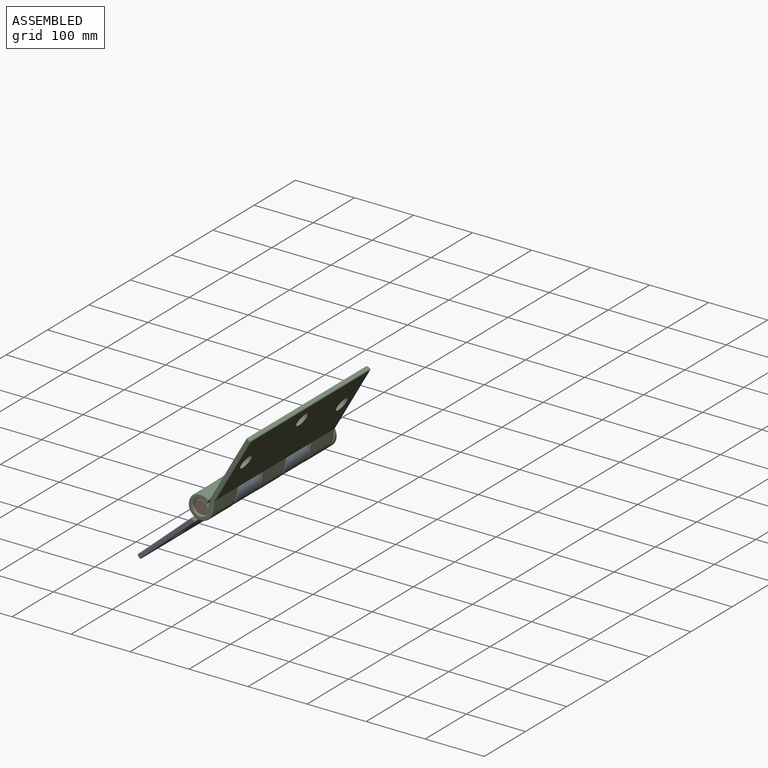
[diagram: assembled view]
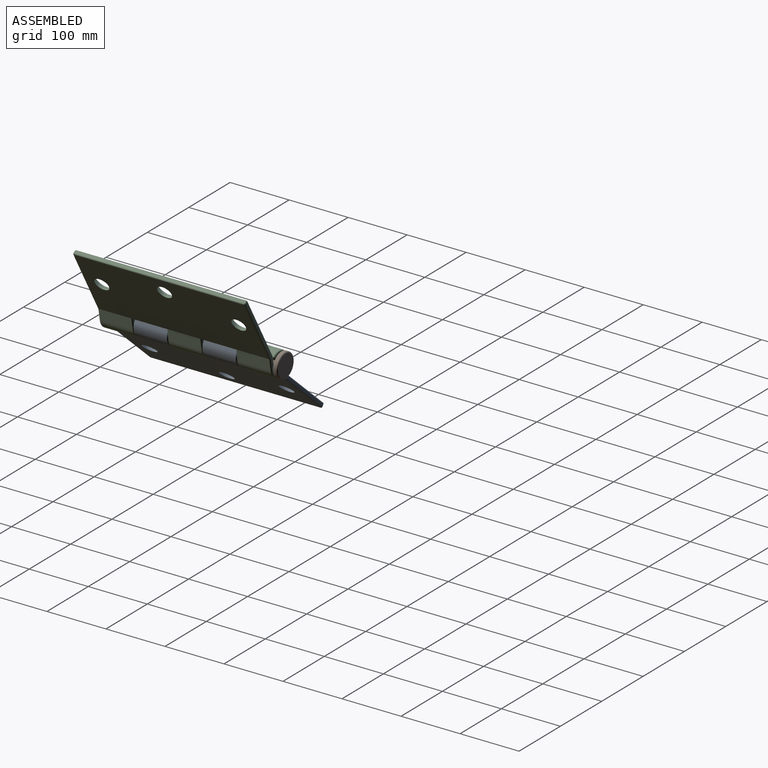
[diagram: assembled view, second angle]
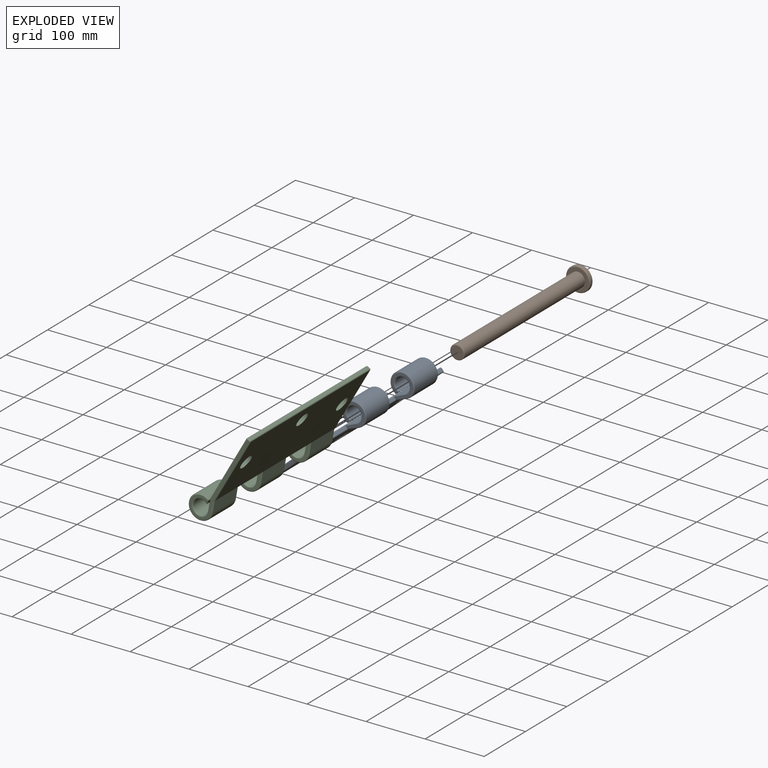
[diagram: exploded view]
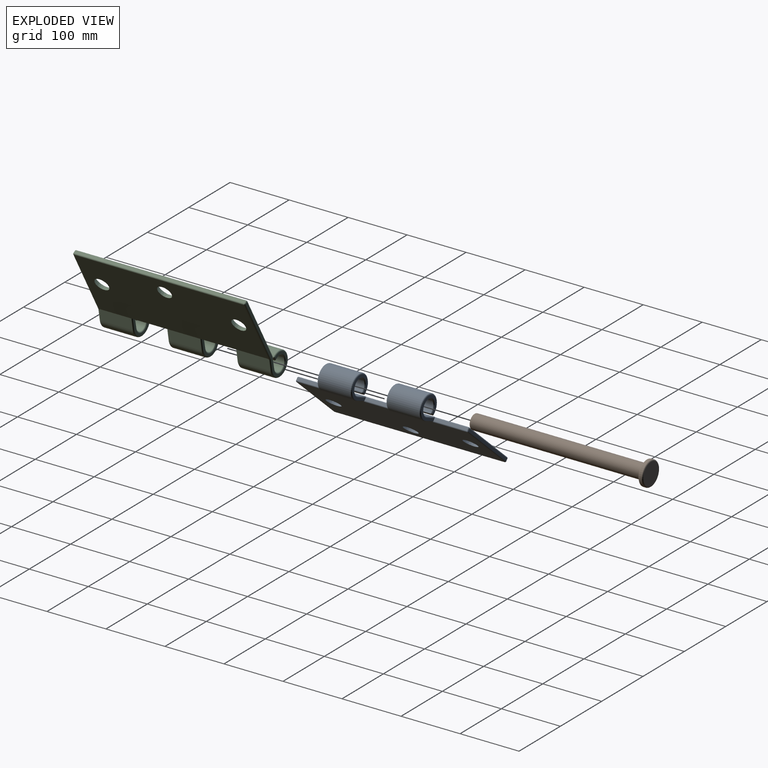
[diagram: exploded view, second angle]
ASSEMBLY  parts=3 mates=2
PART A: 72 faces, bbox 171.7x292x44.4 mm
  f0: cylinder r=12.5mm len=54.4mm, axis (0,1,0), area 3703.3mm2, adj f2,f8,f66,f71
  f1: cylinder r=12.5mm len=54.4mm, axis (0,1,0), area 3565.2mm2, adj f3,f40,f51,f52
  f2: plane 54.4x20.54mm, normal (0.32,0,0.95), area 1178.1mm2, adj f0,f12,f64,f69
  f3: plane 54.4x20.54mm, normal (0.32,0,0.95), area 1178.1mm2, adj f1,f12,f39,f50
  f4: plane 54.4x18.49mm, normal (-0.34,0,-0.94), area 1068.7mm2, adj f6,f45,f62,f67
  f5: plane 54.4x18.49mm, normal (-0.34,0,-0.94), area 1068.7mm2, adj f7,f41,f45,f55
  f6: cylinder r=20.5mm len=54.4mm, axis (0,1,0), area 5913.6mm2, adj f4,f8,f63,f68
  f7: cylinder r=20.5mm len=54.4mm, axis (0,1,0), area 5820.5mm2, adj f5,f42,f58,f61
  f8: plane 54.4x8.42mm, normal (0,0,-1), area 458.3mm2, adj f0,f6,f65,f70
  f9: plane 54.4x4.07mm, normal (0,0,-1), area 221.3mm2, adj f51,f56,f57,f61
  f10: plane 121x4mm, normal (0,-1,0), area 484mm2, adj f32,f36,f37,f38
  f11: plane 121x4mm, normal (0,1,0), area 484mm2, adj f25,f26,f27,f28
  f12: plane 288x123mm, normal (0,0,1), area 32660.9mm2, adj f2,f3,f15,f16,f17,f28,f33,f37
  f13: plane 288x4mm, normal (-1,0,0), area 1152mm2, adj f27,f31,f32,f33
  f14: plane 288x121mm, normal (0,0,-1), area 33490.8mm2, adj f15,f16,f17,f26,f31,f36,f45
  f15: cone r=12mm half-angle=26.6deg, axis (0,0,1), area 786.8mm2, adj f12,f14
  f16: cone r=12mm half-angle=26.6deg, axis (0,0,1), area 786.8mm2, adj f12,f14
  f17: cone r=12mm half-angle=26.6deg, axis (0,0,1), area 786.8mm2, adj f12,f14
  f18: plane 56.4x4mm, normal (1,0,0), area 225.6mm2, adj f19,f38,f39,f41,f45,f47
  f19: plane 43x37mm, normal (0,-1,0), area 421.5mm2, adj f18,f39,f40,f41,f42,f56
  f20: plane 58.41x4mm, normal (1,0,0), area 233.6mm2, adj f21,f22,f45,f49,f50,f55,f67,f69
  f21: plane 43x37mm, normal (0,-1,0), area 421.5mm2, adj f20,f67,f68,f69,f70,f71
  f22: plane 43x37mm, normal (0,1,0), area 421.5mm2, adj f20,f50,f52,f55,f57,f58
  f23: plane 56.4x4mm, normal (1,0,0), area 225.6mm2, adj f24,f25,f43,f45,f62,f64
  f24: plane 43x37mm, normal (0,1,0), area 421.5mm2, adj f23,f62,f63,f64,f65,f66
  f25: cylinder r=2mm len=5.41mm, axis (0,0,-1), area 14.9mm2, adj f11,f23,f26,f44,f45
  f26: cylinder r=2mm len=122.41mm, axis (1,0,0), area 382.5mm2, adj f11,f14,f25,f29,f45
  f27: cylinder r=2mm len=4mm, axis (0,0,-1), area 12.6mm2, adj f11,f13,f29,f30
  f28: cylinder r=2mm len=121mm, axis (-1,0,0), area 380.1mm2, adj f11,f12,f30,f44
  f29: sphere r=2mm, area 6.3mm2, adj f26,f27,f31
  f30: sphere r=2mm, area 6.3mm2, adj f27,f28,f33
  f31: cylinder r=2mm len=288mm, axis (0,1,0), area 904.8mm2, adj f13,f14,f29,f34
  f32: cylinder r=2mm len=4mm, axis (0,0,1), area 12.6mm2, adj f10,f13,f34,f35
  f33: cylinder r=2mm len=288mm, axis (0,1,0), area 904.8mm2, adj f12,f13,f30,f35
  f34: sphere r=2mm, area 6.3mm2, adj f31,f32,f36
  f35: sphere r=2mm, area 6.3mm2, adj f32,f33,f37
  f36: cylinder r=2mm len=121mm, axis (-1,0,0), area 380.1mm2, adj f10,f14,f34,f46
  f37: cylinder r=2mm len=121mm, axis (1,0,0), area 380.1mm2, adj f10,f12,f35,f48
  f38: cylinder r=2mm len=4mm, axis (0,0,1), area 12.6mm2, adj f10,f18,f46,f48
  f39: cylinder r=2mm len=22.98mm, axis (0.95,0,-0.32), area 68.7mm2, adj f3,f12,f18,f19,f40,f47
  f40: torus R=14.5mm, axis (0,-1,0), area 217.9mm2, adj f1,f19,f39,f53
  f41: cylinder r=2mm len=19.17mm, axis (-0.94,0,0.34), area 61mm2, adj f5,f18,f19,f42,f45
  f42: torus R=18.5mm, axis (0,-1,0), area 324.2mm2, adj f7,f19,f41,f59
  f43: cylinder r=2mm len=57.04mm, axis (0,1,0), area 178.4mm2, adj f12,f23,f44,f64
  f44: sphere r=2mm, area 6.3mm2, adj f25,f28,f43
  f45: cylinder r=2mm len=289.41mm, axis (0,-1,0), area 679mm2, adj f4,f5,f14,f18,f20,f23,f25,f26
  f46: sphere r=2mm, area 6.3mm2, adj f36,f38,f45
  f47: cylinder r=2mm len=57.04mm, axis (0,-1,0), area 178.4mm2, adj f12,f18,f39,f48
  f48: sphere r=2mm, area 6.3mm2, adj f37,f38,f47
  f49: cylinder r=2mm len=59.69mm, axis (0,1,0), area 185.9mm2, adj f12,f20,f50,f69
  f50: cylinder r=2mm len=22.98mm, axis (-0.95,0,0.32), area 68.7mm2, adj f3,f12,f20,f22,f49,f52
  f51: cylinder r=2mm len=54.4mm, axis (0,1,0), area 193.6mm2, adj f1,f9,f53,f54
  f52: torus R=14.5mm, axis (0,-1,0), area 217.9mm2, adj f1,f22,f50,f54
  f53: sphere r=2mm, area 7.1mm2, adj f40,f51,f56
  f54: sphere r=2mm, area 7.1mm2, adj f51,f52,f57
  f55: cylinder r=2mm len=19.17mm, axis (0.94,0,-0.34), area 61mm2, adj f5,f20,f22,f45,f58
  f56: cylinder r=2mm len=4.07mm, axis (-1,0,0), area 12.8mm2, adj f9,f19,f53,f59
  f57: cylinder r=2mm len=4.07mm, axis (1,0,0), area 12.8mm2, adj f9,f22,f54,f60
  f58: torus R=18.5mm, axis (0,-1,0), area 324.2mm2, adj f7,f22,f55,f60
  f59: sphere r=2mm, area 5.6mm2, adj f42,f56,f61
  f60: sphere r=2mm, area 5.6mm2, adj f57,f58,f61
  f61: cylinder r=2mm len=54.4mm, axis (0,1,0), area 153.2mm2, adj f7,f9,f59,f60
  f62: cylinder r=2mm len=19.17mm, axis (0.94,0,-0.34), area 61mm2, adj f4,f23,f24,f45,f63
  f63: torus R=18.5mm, axis (0,-1,0), area 327.6mm2, adj f6,f24,f62,f65
  f64: cylinder r=2mm len=22.98mm, axis (-0.95,0,0.32), area 68.7mm2, adj f2,f12,f23,f24,f43,f66
  f65: cylinder r=2mm len=8.42mm, axis (1,0,0), area 21.4mm2, adj f8,f24,f63,f66
  f66: torus R=14.5mm, axis (0,-1,0), area 222.9mm2, adj f0,f24,f64,f65
  f67: cylinder r=2mm len=19.17mm, axis (-0.94,0,0.34), area 61mm2, adj f4,f20,f21,f45,f68
  f68: torus R=18.5mm, axis (0,-1,0), area 327.6mm2, adj f6,f21,f67,f70
  f69: cylinder r=2mm len=22.98mm, axis (0.95,0,-0.32), area 68.7mm2, adj f2,f12,f20,f21,f49,f71
  f70: cylinder r=2mm len=8.42mm, axis (-1,0,0), area 21.4mm2, adj f8,f21,f68,f71
  f71: torus R=14.5mm, axis (0,-1,0), area 222.9mm2, adj f0,f21,f69,f70
PART B: 8 faces, bbox 44.4x300x44.4 mm
  f0: cylinder r=12.25mm len=290mm, axis (0,1,0), area 22321mm2, adj f4,f7
  f1: plane 20.5x20.5mm, normal (0,-1,0), area 330.1mm2, adj f7
  f2: cylinder r=20.5mm len=41mm, axis (0,-1,0), area 515.2mm2, adj f5,f6
  f3: plane 37x37mm, normal (0,1,0), area 1075.2mm2, adj f6
  f4: plane 37x37mm, normal (0,-1,0), area 603.8mm2, adj f0,f5
  f5: torus R=18.5mm, axis (0,1,0), area 390.3mm2, adj f2,f4
  f6: torus R=18.5mm, axis (0,1,0), area 390.3mm2, adj f2,f3
  f7: torus R=10.25mm, axis (0,1,0), area 227.5mm2, adj f0,f1
PART C: 86 faces, bbox 171.7x292x44.4 mm
  f0: cylinder r=12.5mm len=54.4mm, axis (0,1,0), area 3565.2mm2, adj f2,f54,f62,f64
  f1: cylinder r=12.5mm len=54.4mm, axis (0,1,0), area 3703.3mm2, adj f3,f9,f41,f85
  f2: plane 54.4x20.54mm, normal (-0.32,0,0.95), area 1178.1mm2, adj f0,f12,f53,f61
  f3: plane 54.4x20.54mm, normal (-0.32,0,0.95), area 1178.1mm2, adj f1,f12,f36,f83
  f4: plane 54.4x18.49mm, normal (0.34,0,-0.94), area 1068.7mm2, adj f6,f55,f63,f66
  f5: plane 54.4x18.49mm, normal (0.34,0,-0.94), area 1068mm2, adj f7,f49,f50,f63,f81
  f6: cylinder r=20.5mm len=54.4mm, axis (0,1,0), area 5820.5mm2, adj f4,f56,f69,f73
  f7: cylinder r=20.5mm len=54.4mm, axis (0,1,0), area 5913.6mm2, adj f5,f9,f47,f82
  f8: plane 54.4x4.07mm, normal (0,0,-1), area 221.3mm2, adj f64,f68,f70,f73
  f9: plane 54.4x8.42mm, normal (0,0,-1), area 458.3mm2, adj f1,f7,f44,f84
  f10: cylinder r=12.5mm len=54.4mm, axis (0,1,0), area 3565.2mm2, adj f11,f29,f58,f75
  f11: plane 54.4x20.54mm, normal (-0.32,0,0.95), area 1178.1mm2, adj f10,f12,f30,f57
  f12: plane 288x123mm, normal (0,0,1), area 32769.7mm2, adj f2,f3,f11,f20,f21,f22,f32,f37
  f13: plane 288x4mm, normal (1,0,0), area 1152mm2, adj f38,f39,f45,f46
  f14: plane 288x121mm, normal (0,0,-1), area 33490.8mm2, adj f20,f21,f22,f40,f46,f50,f63
  f15: plane 54.4x18.49mm, normal (0.34,0,-0.94), area 1068mm2, adj f16,f35,f40,f59,f63
  f16: cylinder r=20.5mm len=54.4mm, axis (0,1,0), area 5820.5mm2, adj f15,f33,f60,f79
  f17: plane 54.4x4.07mm, normal (0,0,-1), area 221.3mm2, adj f31,f75,f77,f79
  f18: plane 166x37mm, normal (0,-1,0), area 913.5mm2, adj f36,f37,f41,f44,f45,f47,f49,f50
  f19: plane 166x37mm, normal (0,1,0), area 913.5mm2, adj f29,f30,f31,f32,f33,f35,f39,f40
  f20: cone r=12mm half-angle=26.6deg, axis (0,0,1), area 786.8mm2, adj f12,f14
  f21: cone r=12mm half-angle=26.6deg, axis (0,0,1), area 786.8mm2, adj f12,f14
  f22: cone r=12mm half-angle=26.6deg, axis (0,0,1), area 786.8mm2, adj f12,f14
  f23: plane 58.41x4mm, normal (-1,0,0), area 233.6mm2, adj f24,f25,f52,f61,f63,f66,f81,f83
  f24: plane 43x37mm, normal (0,1,0), area 421.5mm2, adj f23,f81,f82,f83,f84,f85
  f25: plane 43x37mm, normal (0,-1,0), area 421.5mm2, adj f23,f61,f62,f66,f68,f69
  f26: plane 58.41x4mm, normal (-1,0,0), area 233.6mm2, adj f27,f28,f51,f53,f55,f57,f59,f63
  f27: plane 43x37mm, normal (0,1,0), area 421.5mm2, adj f26,f53,f54,f55,f56,f70
  f28: plane 43x37mm, normal (0,-1,0), area 421.5mm2, adj f26,f57,f58,f59,f60,f77
  f29: torus R=14.5mm, axis (0,-1,0), area 217.9mm2, adj f10,f19,f30,f74
  f30: cylinder r=2mm len=21.18mm, axis (0.95,0,0.32), area 67.7mm2, adj f11,f19,f29,f32
  f31: cylinder r=2mm len=4.07mm, axis (-1,0,0), area 12.8mm2, adj f17,f19,f74,f80
  f32: cylinder r=2mm len=123mm, axis (1,0,0), area 386mm2, adj f12,f19,f30,f34
  f33: torus R=18.5mm, axis (0,-1,0), area 324.2mm2, adj f16,f19,f35,f80
  f34: sphere r=2mm, area 6.3mm2, adj f32,f38,f39
  f35: cylinder r=2mm len=18.59mm, axis (-0.94,0,-0.34), area 59.1mm2, adj f15,f19,f33,f40
  f36: cylinder r=2mm len=21.18mm, axis (-0.95,0,-0.32), area 67.7mm2, adj f3,f18,f37,f41
  f37: cylinder r=2mm len=123mm, axis (-1,0,0), area 386mm2, adj f12,f18,f36,f42
  f38: cylinder r=2mm len=288mm, axis (0,1,0), area 904.8mm2, adj f12,f13,f34,f42
  f39: cylinder r=2mm len=4mm, axis (0,0,-1), area 12.6mm2, adj f13,f19,f34,f43
  f40: cylinder r=2mm len=123.35mm, axis (-1,0,0), area 388.1mm2, adj f14,f15,f19,f35,f43,f63
  f41: torus R=14.5mm, axis (0,-1,0), area 222.9mm2, adj f1,f18,f36,f44
  f42: sphere r=2mm, area 6.3mm2, adj f37,f38,f45
  f43: sphere r=2mm, area 6.3mm2, adj f39,f40,f46
  f44: cylinder r=2mm len=8.42mm, axis (1,0,0), area 21.4mm2, adj f9,f18,f41,f47
  f45: cylinder r=2mm len=4mm, axis (0,0,1), area 12.6mm2, adj f13,f18,f42,f48
  f46: cylinder r=2mm len=288mm, axis (0,1,0), area 904.8mm2, adj f13,f14,f43,f48
  f47: torus R=18.5mm, axis (0,-1,0), area 327.6mm2, adj f7,f18,f44,f49
  f48: sphere r=2mm, area 6.3mm2, adj f45,f46,f50
  f49: cylinder r=2mm len=18.59mm, axis (0.94,0,0.34), area 59.1mm2, adj f5,f18,f47,f50
  f50: cylinder r=2mm len=123.35mm, axis (1,0,0), area 388.1mm2, adj f5,f14,f18,f48,f49,f63
  f51: cylinder r=2mm len=59.69mm, axis (0,-1,0), area 185.9mm2, adj f12,f26,f53,f57
  f52: cylinder r=2mm len=59.69mm, axis (0,-1,0), area 185.9mm2, adj f12,f23,f61,f83
  f53: cylinder r=2mm len=22.98mm, axis (-0.95,0,-0.32), area 68.7mm2, adj f2,f12,f26,f27,f51,f54
  f54: torus R=14.5mm, axis (0,1,0), area 217.9mm2, adj f0,f27,f53,f67
  f55: cylinder r=2mm len=19.17mm, axis (0.94,0,0.34), area 61mm2, adj f4,f26,f27,f56,f63
  f56: torus R=18.5mm, axis (0,1,0), area 324.2mm2, adj f6,f27,f55,f72
  f57: cylinder r=2mm len=22.98mm, axis (0.95,0,0.32), area 68.7mm2, adj f11,f12,f26,f28,f51,f58
  f58: torus R=14.5mm, axis (0,1,0), area 217.9mm2, adj f10,f28,f57,f76
  f59: cylinder r=2mm len=19.17mm, axis (-0.94,0,-0.34), area 61mm2, adj f15,f26,f28,f60,f63
  f60: torus R=18.5mm, axis (0,1,0), area 324.2mm2, adj f16,f28,f59,f78
  f61: cylinder r=2mm len=22.98mm, axis (0.95,0,0.32), area 68.7mm2, adj f2,f12,f23,f25,f52,f62
  f62: torus R=14.5mm, axis (0,1,0), area 217.9mm2, adj f0,f25,f61,f65
  f63: cylinder r=2mm len=288mm, axis (0,1,0), area 567.4mm2, adj f4,f5,f14,f15,f23,f26,f40,f50
  f64: cylinder r=2mm len=54.4mm, axis (0,1,0), area 193.6mm2, adj f0,f8,f65,f67
  f65: sphere r=2mm, area 7.1mm2, adj f62,f64,f68
  f66: cylinder r=2mm len=19.17mm, axis (-0.94,0,-0.34), area 61mm2, adj f4,f23,f25,f63,f69
  f67: sphere r=2mm, area 7.1mm2, adj f54,f64,f70
  f68: cylinder r=2mm len=4.07mm, axis (-1,0,0), area 12.8mm2, adj f8,f25,f65,f71
  f69: torus R=18.5mm, axis (0,1,0), area 324.2mm2, adj f6,f25,f66,f71
  f70: cylinder r=2mm len=4.07mm, axis (1,0,0), area 12.8mm2, adj f8,f27,f67,f72
  f71: sphere r=2mm, area 5.6mm2, adj f68,f69,f73
  f72: sphere r=2mm, area 5.6mm2, adj f56,f70,f73
  f73: cylinder r=2mm len=54.4mm, axis (0,1,0), area 153.2mm2, adj f6,f8,f71,f72
  f74: sphere r=2mm, area 7.1mm2, adj f29,f31,f75
  f75: cylinder r=2mm len=54.4mm, axis (0,1,0), area 193.6mm2, adj f10,f17,f74,f76
  f76: sphere r=2mm, area 7.1mm2, adj f58,f75,f77
  f77: cylinder r=2mm len=4.07mm, axis (-1,0,0), area 12.8mm2, adj f17,f28,f76,f78
  f78: sphere r=2mm, area 5.6mm2, adj f60,f77,f79
  f79: cylinder r=2mm len=54.4mm, axis (0,1,0), area 153.2mm2, adj f16,f17,f78,f80
  f80: sphere r=2mm, area 5.6mm2, adj f31,f33,f79
  f81: cylinder r=2mm len=19.17mm, axis (0.94,0,0.34), area 61mm2, adj f5,f23,f24,f63,f82
  f82: torus R=18.5mm, axis (0,1,0), area 327.6mm2, adj f7,f24,f81,f84
  f83: cylinder r=2mm len=22.98mm, axis (-0.95,0,-0.32), area 68.7mm2, adj f3,f12,f23,f24,f52,f85
  f84: cylinder r=2mm len=8.42mm, axis (1,0,0), area 21.4mm2, adj f9,f24,f82,f85
  f85: torus R=14.5mm, axis (0,1,0), area 222.9mm2, adj f1,f24,f83,f84
PLACE A rot(axis=(0,-1,0),41.4deg) t=(133.03,37.56,13.81)mm
PLACE B rot(axis=(0,1,0),47.4deg) t=(126.89,39.56,47.22)mm fixed
PLACE C rot(axis=(0,-1,0),60.3deg) t=(139.37,37.56,8.8)mm
MATE revolute B.f0 <-> C.f0  axis (0,-1,0) through (147.15,-252.44,32.56)mm
MATE revolute A.f19 <-> C.f24  axis (0,-1,0) through (147.95,-196.04,32.9)mm
